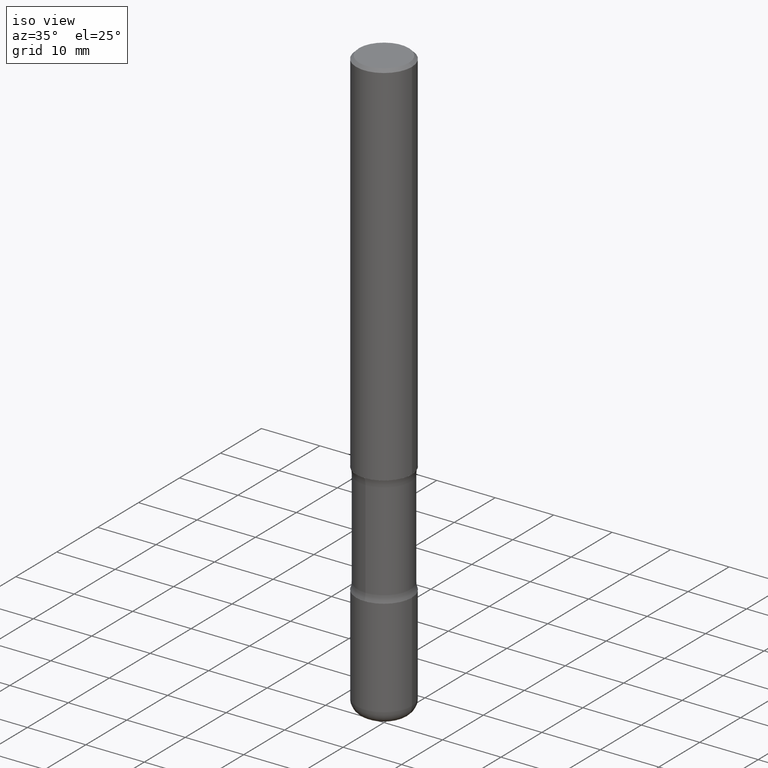
[diagram: clean part render]
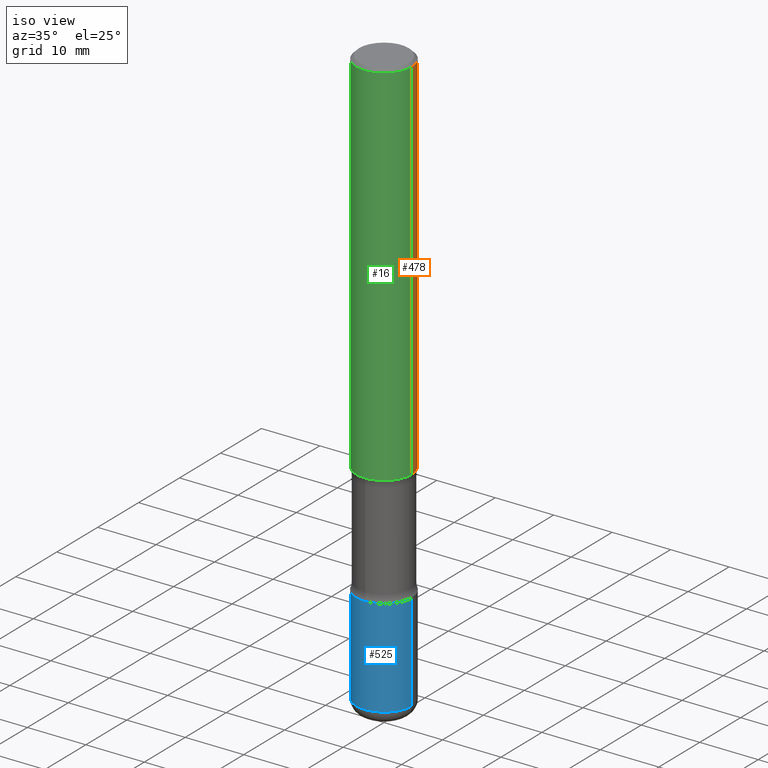
[diagram: same view with three faces highlighted in distinct colors, each labeled with its STEP entity id]
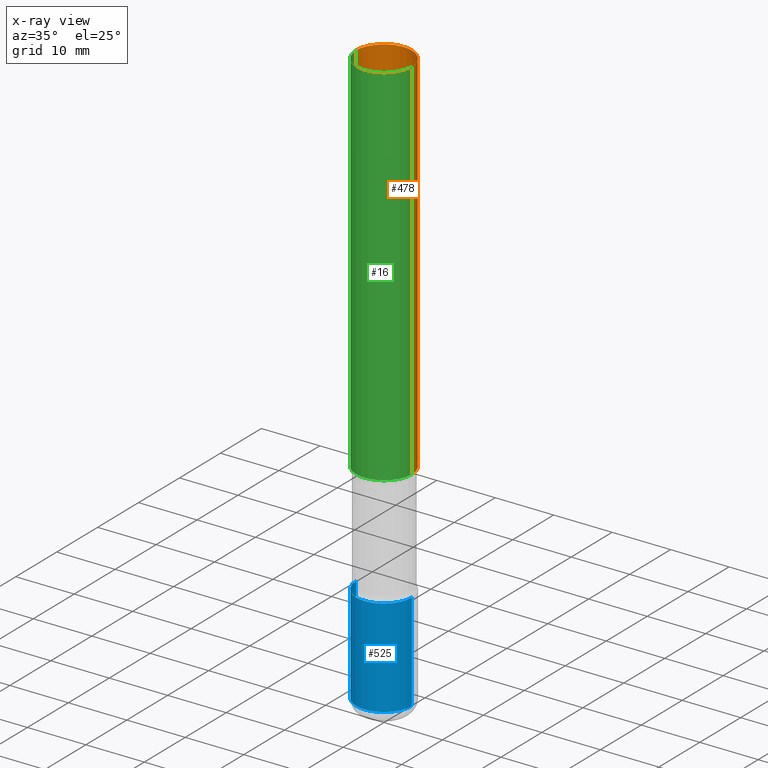
[diagram: x-ray of the same camera — body ghosted, the three highlighted faces saturated]
A machine part, iso view with three faces highlighted in distinct colors.
The next image is the same camera in x-ray (body ghosted, the three faces saturated) — at least one of them is partly hidden behind the body in this view.
Their STEP definitions:

[orange] entity #478 — the highlighted cylindrical surface (edge-blend (fillet) strip) has radius 4.7625 mm, axis along (-0, 0, 1).
#2 = DIRECTION ( 'NONE',  ( -2.445468806185136877E-29, 3.491481338843145188E-15, 1.000000000000000000 ) ) ;
#3 = FACE_OUTER_BOUND ( 'NONE', #399, .T. ) ;
#6 = CARTESIAN_POINT ( 'NONE',  ( 6.113672015462842613E-29, -8.728703347107864943E-15, -2.500000000000000000 ) ) ;
#14 = VERTEX_POINT ( 'NONE', #506 ) ;
#18 = VERTEX_POINT ( 'NONE', #349 ) ;
#92 = DIRECTION ( 'NONE',  ( 1.000000000000000000, -6.982962677686265922E-15, 4.876176775795935793E-29 ) ) ;
#104 = EDGE_CURVE ( 'NONE', #14, #18, #123, .T. ) ;
#112 = VECTOR ( 'NONE', #385, 39.37007874015748143 ) ;
#115 = CIRCLE ( 'NONE', #248, 0.1874999999999999167 ) ;
#123 = CIRCLE ( 'NONE', #186, 0.1875000000000001110 ) ;
#131 = DIRECTION ( 'NONE',  ( 1.000000000000000000, -6.982962677686263555E-15, 0.000000000000000000 ) ) ;
#132 = VECTOR ( 'NONE', #2, 39.37007874015748143 ) ;
#167 = ORIENTED_EDGE ( 'NONE', *, *, #362, .T. ) ;
#186 = AXIS2_PLACEMENT_3D ( 'NONE', #6, #220, #131 ) ;
#210 = DIRECTION ( 'NONE',  ( -2.445468806185136597E-29, 3.491481338843145583E-15, 1.000000000000000000 ) ) ;
#212 = LINE ( 'NONE', #511, #132 ) ;
#214 = CARTESIAN_POINT ( 'NONE',  ( 0.1874999999999999167, -1.356173001359024677E-15, -0.02000000000000006981 ) ) ;
#220 = DIRECTION ( 'NONE',  ( -2.445468806185136597E-29, 3.491481338843145583E-15, 1.000000000000000000 ) ) ;
#248 = AXIS2_PLACEMENT_3D ( 'NONE', #434, #210, #300 ) ;
#250 = ORIENTED_EDGE ( 'NONE', *, *, #104, .T. ) ;
#300 = DIRECTION ( 'NONE',  ( 1.000000000000000000, -6.982962677686265922E-15, 0.000000000000000000 ) ) ;
#303 = LINE ( 'NONE', #429, #112 ) ;
#317 = EDGE_CURVE ( 'NONE', #14, #322, #303, .T. ) ;
#322 = VERTEX_POINT ( 'NONE', #214 ) ;
#349 = CARTESIAN_POINT ( 'NONE',  ( -0.1875000000000000833, -3.066998857392172722E-15, -2.500000000000000000 ) ) ;
#358 = DIRECTION ( 'NONE',  ( -2.445468806185136597E-29, 3.491481338843145583E-15, 1.000000000000000000 ) ) ;
#360 = VERTEX_POINT ( 'NONE', #475 ) ;
#362 = EDGE_CURVE ( 'NONE', #18, #360, #212, .T. ) ;
#385 = DIRECTION ( 'NONE',  ( -2.445468806185136877E-29, 3.491481338843145188E-15, 1.000000000000000000 ) ) ;
#399 = EDGE_LOOP ( 'NONE', ( #250, #167, #446, #402 ) ) ;
#402 = ORIENTED_EDGE ( 'NONE', *, *, #317, .F. ) ;
#429 = CARTESIAN_POINT ( 'NONE',  ( 0.1875000000000000278, -1.309305502066175008E-15, 9.142831454617381013E-30 ) ) ;
#434 = CARTESIAN_POINT ( 'NONE',  ( 4.890937612370289799E-31, -6.982962677686315028E-17, -0.02000000000000006981 ) ) ;
#445 = AXIS2_PLACEMENT_3D ( 'NONE', #484, #358, #92 ) ;
#446 = ORIENTED_EDGE ( 'NONE', *, *, #473, .F. ) ;
#473 = EDGE_CURVE ( 'NONE', #322, #360, #115, .T. ) ;
#475 = CARTESIAN_POINT ( 'NONE',  ( -0.1874999999999999167, 1.239475875289311118E-15, -0.02000000000000006981 ) ) ;
#478 = ADVANCED_FACE ( 'NONE', ( #3 ), #533, .T. ) ;
#484 = CARTESIAN_POINT ( 'NONE',  ( 0.000000000000000000, 0.000000000000000000, 0.000000000000000000 ) ) ;
#506 = CARTESIAN_POINT ( 'NONE',  ( 0.1875000000000001110, -1.003800884917403995E-14, -2.500000000000000000 ) ) ;
#511 = CARTESIAN_POINT ( 'NONE',  ( -0.1875000000000000278, 1.332267629550188046E-15, -9.223003294227947991E-30 ) ) ;
#533 = CYLINDRICAL_SURFACE ( 'NONE', #445, 0.1875000000000000278 ) ;

[blue] entity #525 — the highlighted cylindrical surface (edge-blend (fillet) strip) has radius 4.7625 mm, axis along (-0, 0, 1).
#11 = CARTESIAN_POINT ( 'NONE',  ( -0.1875000000000000833, -1.116723556350827469E-14, -3.250000000000000444 ) ) ;
#32 = EDGE_CURVE ( 'NONE', #544, #59, #231, .T. ) ;
#40 = CARTESIAN_POINT ( 'NONE',  ( 0.000000000000000000, 0.000000000000000000, 0.000000000000000000 ) ) ;
#58 = FACE_OUTER_BOUND ( 'NONE', #285, .T. ) ;
#59 = VERTEX_POINT ( 'NONE', #260 ) ;
#62 = DIRECTION ( 'NONE',  ( -2.445468806185136877E-29, 3.491481338843145188E-15, 1.000000000000000000 ) ) ;
#66 = VECTOR ( 'NONE', #62, 39.37007874015748143 ) ;
#77 = AXIS2_PLACEMENT_3D ( 'NONE', #40, #82, #119 ) ;
#82 = DIRECTION ( 'NONE',  ( -2.445468806185136597E-29, 3.491481338843145583E-15, 1.000000000000000000 ) ) ;
#119 = DIRECTION ( 'NONE',  ( 1.000000000000000000, -6.982962677686266711E-15, 4.876176775795935793E-29 ) ) ;
#130 = DIRECTION ( 'NONE',  ( -2.445468806185136597E-29, 3.491481338843145583E-15, 1.000000000000000000 ) ) ;
#149 = ORIENTED_EDGE ( 'NONE', *, *, #386, .T. ) ;
#160 = CIRCLE ( 'NONE', #537, 0.1875000000000000833 ) ;
#175 = DIRECTION ( 'NONE',  ( -2.445468806185136877E-29, 3.491481338843145188E-15, 1.000000000000000000 ) ) ;
#176 = DIRECTION ( 'NONE',  ( 1.000000000000000000, -6.982962677686269077E-15, 0.000000000000000000 ) ) ;
#178 = AXIS2_PLACEMENT_3D ( 'NONE', #307, #130, #176 ) ;
#192 = VERTEX_POINT ( 'NONE', #452 ) ;
#197 = LINE ( 'NONE', #325, #66 ) ;
#204 = EDGE_CURVE ( 'NONE', #192, #496, #197, .T. ) ;
#231 = LINE ( 'NONE', #400, #512 ) ;
#236 = EDGE_CURVE ( 'NONE', #496, #59, #160, .T. ) ;
#245 = DIRECTION ( 'NONE',  ( -2.445468806185136597E-29, 3.491481338843145583E-15, 1.000000000000000000 ) ) ;
#255 = CARTESIAN_POINT ( 'NONE',  ( 7.947773620101696182E-29, -1.134731435124022600E-14, -3.250000000000000444 ) ) ;
#260 = CARTESIAN_POINT ( 'NONE',  ( 0.1875000000000000833, -1.265661985330640259E-14, -3.250000000000000444 ) ) ;
#285 = EDGE_LOOP ( 'NONE', ( #383, #149, #327, #448 ) ) ;
#307 = CARTESIAN_POINT ( 'NONE',  ( 9.561783032183883600E-29, -1.365169203487670064E-14, -3.910000000000000142 ) ) ;
#325 = CARTESIAN_POINT ( 'NONE',  ( -0.1875000000000001110, 1.332267629550188637E-15, -9.223003294227953596E-30 ) ) ;
#327 = ORIENTED_EDGE ( 'NONE', *, *, #32, .T. ) ;
#371 = CARTESIAN_POINT ( 'NONE',  ( 0.1875000000000002220, -1.496099753694287723E-14, -3.910000000000000142 ) ) ;
#376 = DIRECTION ( 'NONE',  ( 1.000000000000000000, -6.982962677686269866E-15, 0.000000000000000000 ) ) ;
#383 = ORIENTED_EDGE ( 'NONE', *, *, #204, .F. ) ;
#386 = EDGE_CURVE ( 'NONE', #192, #544, #523, .T. ) ;
#400 = CARTESIAN_POINT ( 'NONE',  ( 0.1875000000000001110, -1.309305502066175797E-15, 9.142831454617385217E-30 ) ) ;
#448 = ORIENTED_EDGE ( 'NONE', *, *, #236, .F. ) ;
#452 = CARTESIAN_POINT ( 'NONE',  ( -0.1875000000000002220, -1.231942440532651122E-14, -3.910000000000000142 ) ) ;
#496 = VERTEX_POINT ( 'NONE', #11 ) ;
#503 = CYLINDRICAL_SURFACE ( 'NONE', #77, 0.1875000000000001110 ) ;
#512 = VECTOR ( 'NONE', #175, 39.37007874015748143 ) ;
#523 = CIRCLE ( 'NONE', #178, 0.1875000000000001110 ) ;
#525 = ADVANCED_FACE ( 'NONE', ( #58 ), #503, .T. ) ;
#537 = AXIS2_PLACEMENT_3D ( 'NONE', #255, #245, #376 ) ;
#544 = VERTEX_POINT ( 'NONE', #371 ) ;

[green] entity #16 — the highlighted cylindrical surface (edge-blend (fillet) strip) has radius 4.7625 mm, axis along (-0, 0, 1).
#2 = DIRECTION ( 'NONE',  ( -2.445468806185136877E-29, 3.491481338843145188E-15, 1.000000000000000000 ) ) ;
#14 = VERTEX_POINT ( 'NONE', #506 ) ;
#16 = ADVANCED_FACE ( 'NONE', ( #118 ), #421, .T. ) ;
#18 = VERTEX_POINT ( 'NONE', #349 ) ;
#36 = CARTESIAN_POINT ( 'NONE',  ( 0.000000000000000000, 0.000000000000000000, 0.000000000000000000 ) ) ;
#49 = DIRECTION ( 'NONE',  ( 1.000000000000000000, -6.982962677686263555E-15, 0.000000000000000000 ) ) ;
#69 = EDGE_CURVE ( 'NONE', #18, #14, #443, .T. ) ;
#112 = VECTOR ( 'NONE', #385, 39.37007874015748143 ) ;
#118 = FACE_OUTER_BOUND ( 'NONE', #190, .T. ) ;
#120 = DIRECTION ( 'NONE',  ( 1.000000000000000000, -6.982962677686265922E-15, 4.876176775795935793E-29 ) ) ;
#132 = VECTOR ( 'NONE', #2, 39.37007874015748143 ) ;
#143 = ORIENTED_EDGE ( 'NONE', *, *, #362, .F. ) ;
#184 = DIRECTION ( 'NONE',  ( -2.445468806185136597E-29, 3.491481338843145583E-15, 1.000000000000000000 ) ) ;
#190 = EDGE_LOOP ( 'NONE', ( #143, #374, #532, #550 ) ) ;
#209 = DIRECTION ( 'NONE',  ( -2.445468806185136597E-29, 3.491481338843145583E-15, 1.000000000000000000 ) ) ;
#212 = LINE ( 'NONE', #511, #132 ) ;
#214 = CARTESIAN_POINT ( 'NONE',  ( 0.1874999999999999167, -1.356173001359024677E-15, -0.02000000000000006981 ) ) ;
#219 = CARTESIAN_POINT ( 'NONE',  ( 4.890937612370289799E-31, -6.982962677686315028E-17, -0.02000000000000006981 ) ) ;
#273 = AXIS2_PLACEMENT_3D ( 'NONE', #404, #184, #49 ) ;
#283 = AXIS2_PLACEMENT_3D ( 'NONE', #219, #431, #393 ) ;
#291 = AXIS2_PLACEMENT_3D ( 'NONE', #36, #209, #120 ) ;
#303 = LINE ( 'NONE', #429, #112 ) ;
#317 = EDGE_CURVE ( 'NONE', #14, #322, #303, .T. ) ;
#322 = VERTEX_POINT ( 'NONE', #214 ) ;
#349 = CARTESIAN_POINT ( 'NONE',  ( -0.1875000000000000833, -3.066998857392172722E-15, -2.500000000000000000 ) ) ;
#360 = VERTEX_POINT ( 'NONE', #475 ) ;
#362 = EDGE_CURVE ( 'NONE', #18, #360, #212, .T. ) ;
#367 = CIRCLE ( 'NONE', #283, 0.1874999999999999167 ) ;
#374 = ORIENTED_EDGE ( 'NONE', *, *, #69, .T. ) ;
#385 = DIRECTION ( 'NONE',  ( -2.445468806185136877E-29, 3.491481338843145188E-15, 1.000000000000000000 ) ) ;
#393 = DIRECTION ( 'NONE',  ( 1.000000000000000000, -6.982962677686265922E-15, 0.000000000000000000 ) ) ;
#404 = CARTESIAN_POINT ( 'NONE',  ( 6.113672015462842613E-29, -8.728703347107864943E-15, -2.500000000000000000 ) ) ;
#421 = CYLINDRICAL_SURFACE ( 'NONE', #291, 0.1875000000000000278 ) ;
#425 = EDGE_CURVE ( 'NONE', #360, #322, #367, .T. ) ;
#429 = CARTESIAN_POINT ( 'NONE',  ( 0.1875000000000000278, -1.309305502066175008E-15, 9.142831454617381013E-30 ) ) ;
#431 = DIRECTION ( 'NONE',  ( -2.445468806185136597E-29, 3.491481338843145583E-15, 1.000000000000000000 ) ) ;
#443 = CIRCLE ( 'NONE', #273, 0.1875000000000001110 ) ;
#475 = CARTESIAN_POINT ( 'NONE',  ( -0.1874999999999999167, 1.239475875289311118E-15, -0.02000000000000006981 ) ) ;
#506 = CARTESIAN_POINT ( 'NONE',  ( 0.1875000000000001110, -1.003800884917403995E-14, -2.500000000000000000 ) ) ;
#511 = CARTESIAN_POINT ( 'NONE',  ( -0.1875000000000000278, 1.332267629550188046E-15, -9.223003294227947991E-30 ) ) ;
#532 = ORIENTED_EDGE ( 'NONE', *, *, #317, .T. ) ;
#550 = ORIENTED_EDGE ( 'NONE', *, *, #425, .F. ) ;